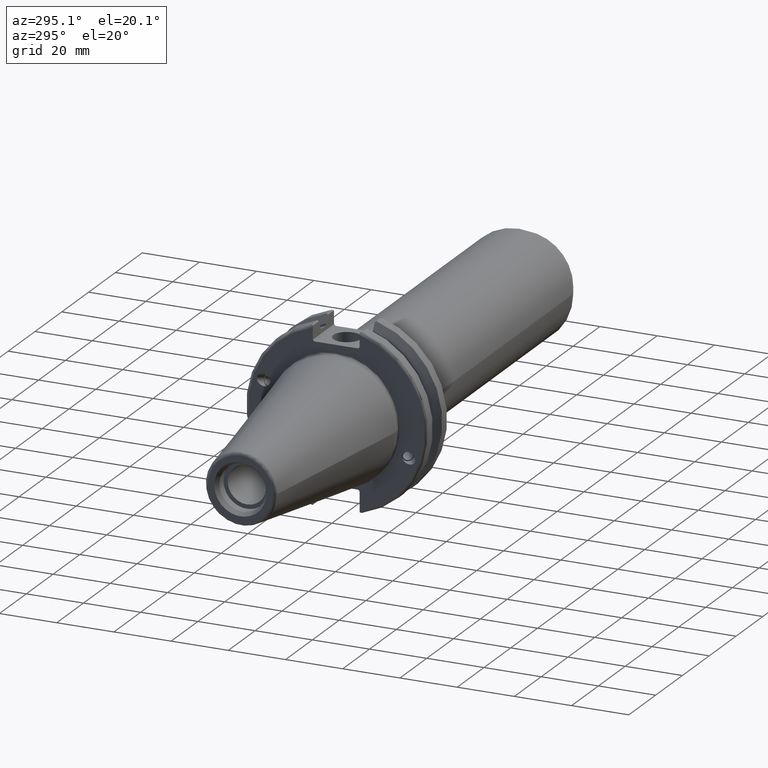
[diagram: clean part render]
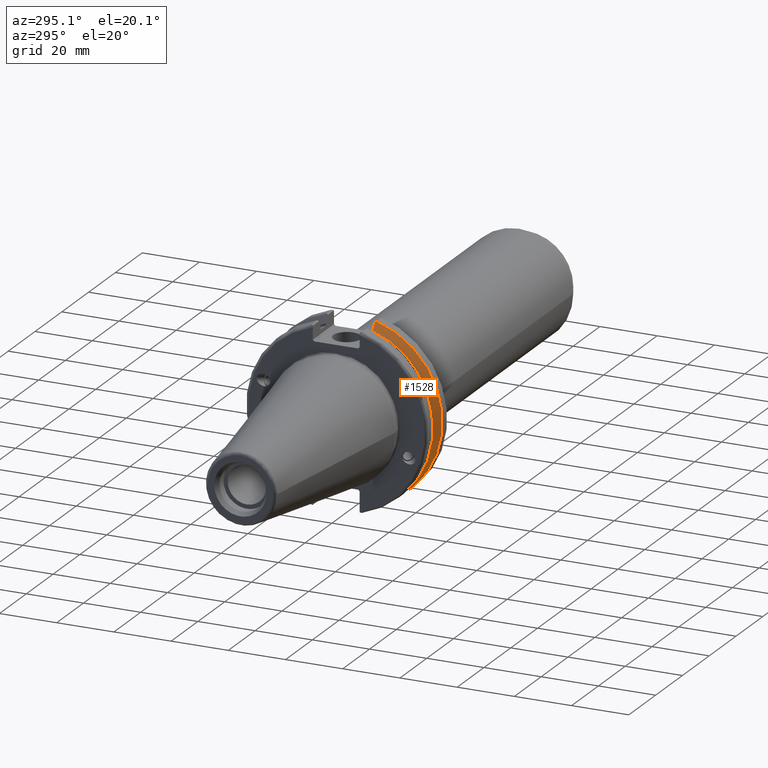
[diagram: same view with one face highlighted and labeled with its STEP entity id]
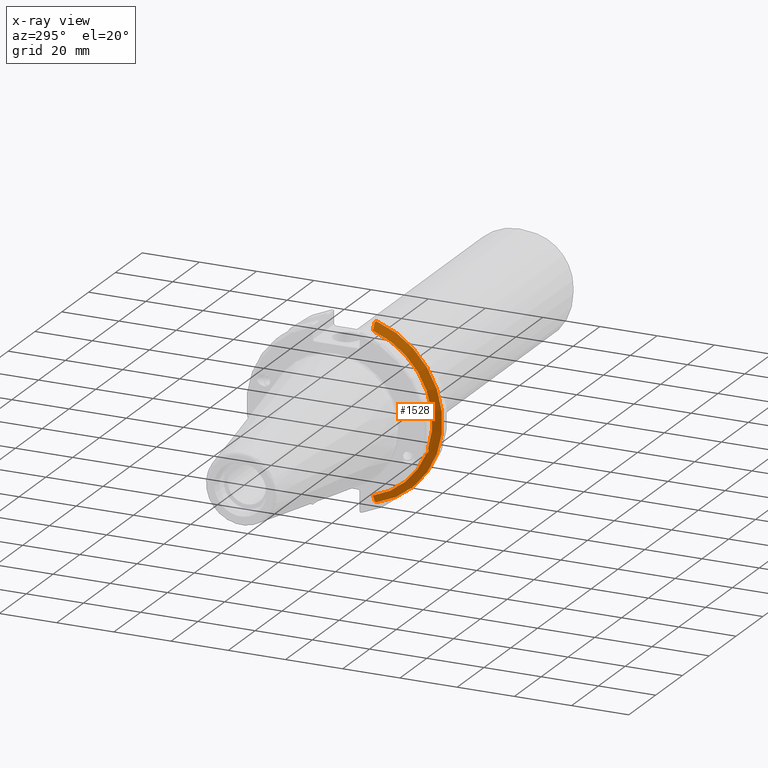
[diagram: x-ray of the same camera — body ghosted, the highlighted face saturated]
A machine part, auxiliary view. The second image highlights one B-rep face of the part: STEP entity #1528.
The next image is the same camera in x-ray: the body ghosted, the highlighted face saturated — about 0% of this face is hidden behind the body in this view.
In plain terms, the highlighted conical surface has half-angle 60 deg.
Its self-contained STEP definition (entity closure, byte-faithful):
#15=(
BOUNDED_CURVE()
B_SPLINE_CURVE(2,(#2571,#2572,#2573),.UNSPECIFIED.,.F.,.F.)
B_SPLINE_CURVE_WITH_KNOTS((3,3),(0.,0.276549142795512),.UNSPECIFIED.)
CURVE()
GEOMETRIC_REPRESENTATION_ITEM()
RATIONAL_B_SPLINE_CURVE((1.,1.00095203904184,1.00031614445102))
REPRESENTATION_ITEM('')
);
#16=(
BOUNDED_CURVE()
B_SPLINE_CURVE(2,(#2575,#2576,#2577),.UNSPECIFIED.,.F.,.F.)
B_SPLINE_CURVE_WITH_KNOTS((3,3),(0.,0.0639048713675663),.UNSPECIFIED.)
CURVE()
GEOMETRIC_REPRESENTATION_ITEM()
RATIONAL_B_SPLINE_CURVE((1.,1.00028444218286,1.00047644010578))
REPRESENTATION_ITEM('')
);
#17=(
BOUNDED_CURVE()
B_SPLINE_CURVE(2,(#2581,#2582,#2583),.UNSPECIFIED.,.F.,.F.)
B_SPLINE_CURVE_WITH_KNOTS((3,3),(0.329353533631206,0.393258405001023),
 .UNSPECIFIED.)
CURVE()
GEOMETRIC_REPRESENTATION_ITEM()
RATIONAL_B_SPLINE_CURVE((1.00047644010579,1.00028444218287,1.))
REPRESENTATION_ITEM('')
);
#18=(
BOUNDED_CURVE()
B_SPLINE_CURVE(2,(#2585,#2586,#2587),.UNSPECIFIED.,.F.,.F.)
B_SPLINE_CURVE_WITH_KNOTS((3,3),(0.0550586467393779,0.331607789535852),
 .UNSPECIFIED.)
CURVE()
GEOMETRIC_REPRESENTATION_ITEM()
RATIONAL_B_SPLINE_CURVE((1.00031614444922,1.00095203903643,1.))
REPRESENTATION_ITEM('')
);
#165=FACE_OUTER_BOUND('',#260,.T.);
#260=EDGE_LOOP('',(#1148,#1149,#1150,#1151,#1152,#1153,#1154,#1155,#1156));
#363=CIRCLE('',#1677,28.9593772964944);
#364=CIRCLE('',#1678,31.75);
#365=CIRCLE('',#1679,28.9593772964944);
#600=B_SPLINE_CURVE_WITH_KNOTS('',3,(#2479,#2480,#2481,#2482,#2483,#2484,
#2485,#2486),.UNSPECIFIED.,.F.,.F.,(4,2,2,4),(0.451995700189024,0.464547828547662,
0.504528771685167,0.544509714822672),.UNSPECIFIED.);
#604=B_SPLINE_CURVE_WITH_KNOTS('',3,(#2541,#2542,#2543,#2544,#2545,#2546,
#2547,#2548),.UNSPECIFIED.,.F.,.F.,(4,2,2,4),(0.544509714822672,0.584490657960177,
0.624471601097683,0.637023729456322),.UNSPECIFIED.);
#672=VERTEX_POINT('',#2476);
#673=VERTEX_POINT('',#2478);
#680=VERTEX_POINT('',#2539);
#686=VERTEX_POINT('',#2568);
#687=VERTEX_POINT('',#2570);
#688=VERTEX_POINT('',#2574);
#689=VERTEX_POINT('',#2578);
#690=VERTEX_POINT('',#2580);
#691=VERTEX_POINT('',#2584);
#844=EDGE_CURVE('',#673,#672,#600,.T.);
#852=EDGE_CURVE('',#672,#680,#604,.T.);
#861=EDGE_CURVE('',#680,#686,#363,.T.);
#862=EDGE_CURVE('',#686,#687,#15,.T.);
#863=EDGE_CURVE('',#688,#687,#16,.T.);
#864=EDGE_CURVE('',#689,#688,#364,.T.);
#865=EDGE_CURVE('',#690,#689,#17,.T.);
#866=EDGE_CURVE('',#690,#691,#18,.T.);
#867=EDGE_CURVE('',#691,#673,#365,.T.);
#1148=ORIENTED_EDGE('',*,*,#844,.T.);
#1149=ORIENTED_EDGE('',*,*,#852,.T.);
#1150=ORIENTED_EDGE('',*,*,#861,.T.);
#1151=ORIENTED_EDGE('',*,*,#862,.T.);
#1152=ORIENTED_EDGE('',*,*,#863,.F.);
#1153=ORIENTED_EDGE('',*,*,#864,.F.);
#1154=ORIENTED_EDGE('',*,*,#865,.F.);
#1155=ORIENTED_EDGE('',*,*,#866,.T.);
#1156=ORIENTED_EDGE('',*,*,#867,.T.);
#1496=CONICAL_SURFACE('',#1676,30.3546886482472,1.0471975511966);
#1528=ADVANCED_FACE('',(#165),#1496,.T.);
#1676=AXIS2_PLACEMENT_3D('',#2567,#1947,#1948);
#1677=AXIS2_PLACEMENT_3D('',#2569,#1949,#1950);
#1678=AXIS2_PLACEMENT_3D('',#2579,#1951,#1952);
#1679=AXIS2_PLACEMENT_3D('',#2588,#1953,#1954);
#1947=DIRECTION('center_axis',(1.,0.,0.));
#1948=DIRECTION('ref_axis',(0.,-1.,-1.22464679914735E-16));
#1949=DIRECTION('center_axis',(1.,0.,0.));
#1950=DIRECTION('ref_axis',(0.,0.,-1.));
#1951=DIRECTION('center_axis',(1.,0.,0.));
#1952=DIRECTION('ref_axis',(0.,0.,-1.));
#1953=DIRECTION('center_axis',(1.,0.,0.));
#1954=DIRECTION('ref_axis',(0.,0.,-1.));
#2476=CARTESIAN_POINT('',(13.2341,-27.51401829017,-10.0142836826778));
#2478=CARTESIAN_POINT('',(13.0491,-27.4956274489925,-9.09043478536245));
#2479=CARTESIAN_POINT('Ctrl Pts',(13.0491,-27.4956274489925,-9.09043478536245));
#2480=CARTESIAN_POINT('Ctrl Pts',(13.0632204071996,-27.5087667900418,-9.12860597076217));
#2481=CARTESIAN_POINT('Ctrl Pts',(13.0766929817857,-27.5206055003513,-9.16696618806877));
#2482=CARTESIAN_POINT('Ctrl Pts',(13.130081441159,-27.5642934663232,-9.32791534028656));
#2483=CARTESIAN_POINT('Ctrl Pts',(13.1682197084175,-27.5867382255984,-9.46717946402648));
#2484=CARTESIAN_POINT('Ctrl Pts',(13.2204106446058,-27.5847569104122,-9.74771639360671));
#2485=CARTESIAN_POINT('Ctrl Pts',(13.2341,-27.559599249844,-9.8890510252165));
#2486=CARTESIAN_POINT('Ctrl Pts',(13.2341,-27.51401829017,-10.0142836826777));
#2539=CARTESIAN_POINT('',(13.0491,-26.9060914640648,-10.7101715919071));
#2541=CARTESIAN_POINT('Ctrl Pts',(13.2341,-27.51401829017,-10.0142836826777));
#2542=CARTESIAN_POINT('Ctrl Pts',(13.2341,-27.4684373304961,-10.139516340139));
#2543=CARTESIAN_POINT('Ctrl Pts',(13.2204106446058,-27.3968610665578,-10.2639559818059));
#2544=CARTESIAN_POINT('Ctrl Pts',(13.1682197084175,-27.2180531796526,-10.4801333026531));
#2545=CARTESIAN_POINT('Ctrl Pts',(13.130081441159,-27.1113422433189,-10.5723885976054));
#2546=CARTESIAN_POINT('Ctrl Pts',(13.0766929817857,-26.9744191989197,-10.6676007180673));
#2547=CARTESIAN_POINT('Ctrl Pts',(13.0632204071996,-26.9406927482839,-10.6893765730703));
#2548=CARTESIAN_POINT('Ctrl Pts',(13.0491,-26.9060914640648,-10.7101715919071));
#2567=CARTESIAN_POINT('Origin',(13.8546833845378,0.,0.));
#2568=CARTESIAN_POINT('',(13.0491,-8.19,-27.7771386827498));
#2569=CARTESIAN_POINT('Origin',(13.0491,0.,0.));
#2570=CARTESIAN_POINT('',(14.3815146964874,-8.19,-30.1755016258903));
#2571=CARTESIAN_POINT('Ctrl Pts',(13.0491,-8.19,-27.7771386827498));
#2572=CARTESIAN_POINT('Ctrl Pts',(13.68773643849,-8.19,-28.9303689539956));
#2573=CARTESIAN_POINT('Ctrl Pts',(14.3815146964874,-8.19,-30.1755016258903));
#2574=CARTESIAN_POINT('',(14.6602667690756,-8.67204822802686,-30.5427254764662));
#2575=CARTESIAN_POINT('Ctrl Pts',(14.6602667690756,-8.67204822802687,-30.5427254764662));
#2576=CARTESIAN_POINT('Ctrl Pts',(14.5192085187837,-8.42917748262644,-30.357706789263));
#2577=CARTESIAN_POINT('Ctrl Pts',(14.3815146964874,-8.19,-30.1755016258903));
#2578=CARTESIAN_POINT('',(14.6602667690756,-8.67204822802685,30.5427254764662));
#2579=CARTESIAN_POINT('Origin',(14.6602667690756,0.,0.));
#2580=CARTESIAN_POINT('',(14.3815146964874,-8.19,30.1755016258903));
#2581=CARTESIAN_POINT('Ctrl Pts',(14.3815146964874,-8.19,30.1755016258903));
#2582=CARTESIAN_POINT('Ctrl Pts',(14.5192085187884,-8.42917748263465,30.3577067892692));
#2583=CARTESIAN_POINT('Ctrl Pts',(14.6602667690756,-8.67204822802686,30.5427254764662));
#2584=CARTESIAN_POINT('',(13.0491,-8.19,27.7771386827498));
#2585=CARTESIAN_POINT('Ctrl Pts',(14.3815146964874,-8.19,30.1755016258903));
#2586=CARTESIAN_POINT('Ctrl Pts',(13.687736438474,-8.19,28.9303689539668));
#2587=CARTESIAN_POINT('Ctrl Pts',(13.0491,-8.19,27.7771386827498));
#2588=CARTESIAN_POINT('Origin',(13.0491,0.,0.));